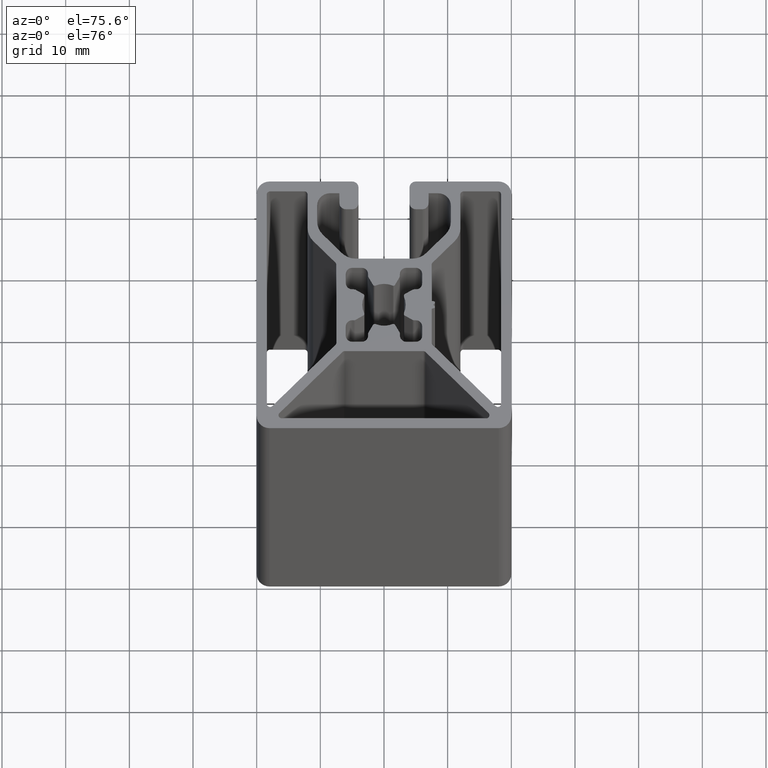
[diagram: clean part render]
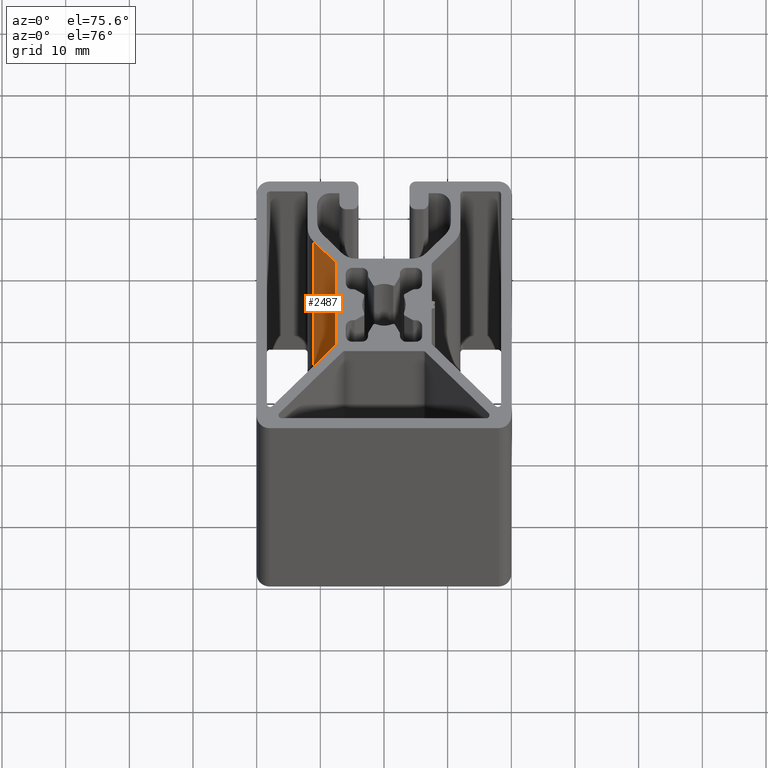
[diagram: same view with one face highlighted and labeled with its STEP entity id]
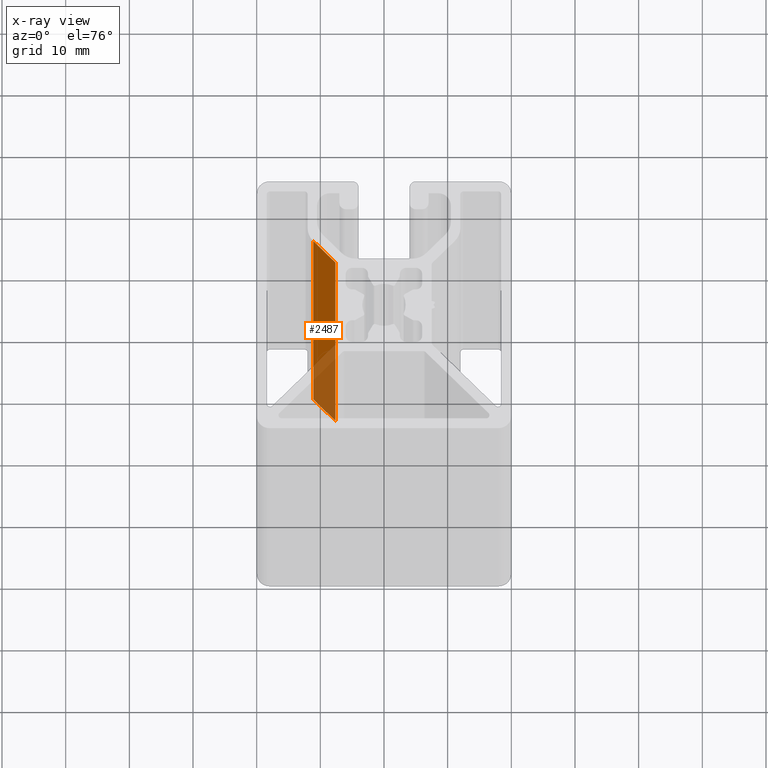
[diagram: x-ray of the same camera — body ghosted, the highlighted face saturated]
A machine part, auxiliary view. The second image highlights one B-rep face of the part: STEP entity #2487.
The next image is the same camera in x-ray: the body ghosted, the highlighted face saturated — about 35% of this face is hidden behind the body in this view.
In plain terms, the highlighted planar face has unit normal (0.7071, 0.7071, 0).
Its self-contained STEP definition (entity closure, byte-faithful):
#223=FACE_OUTER_BOUND('',#354,.T.);
#354=EDGE_LOOP('',(#1654,#1655,#1656,#1657));
#495=LINE('',#3679,#750);
#496=LINE('',#3682,#751);
#497=LINE('',#3684,#752);
#498=LINE('',#3685,#753);
#750=VECTOR('',#2895,100.);
#751=VECTOR('',#2898,4.91421356237309);
#752=VECTOR('',#2899,4.91421356237309);
#753=VECTOR('',#2900,100.);
#1005=VERTEX_POINT('',#3675);
#1006=VERTEX_POINT('',#3677);
#1007=VERTEX_POINT('',#3681);
#1008=VERTEX_POINT('',#3683);
#1265=EDGE_CURVE('',#1006,#1005,#495,.T.);
#1266=EDGE_CURVE('',#1005,#1007,#496,.T.);
#1267=EDGE_CURVE('',#1008,#1006,#497,.T.);
#1268=EDGE_CURVE('',#1008,#1007,#498,.T.);
#1654=ORIENTED_EDGE('',*,*,#1266,.F.);
#1655=ORIENTED_EDGE('',*,*,#1265,.F.);
#1656=ORIENTED_EDGE('',*,*,#1267,.F.);
#1657=ORIENTED_EDGE('',*,*,#1268,.T.);
#2421=PLANE('',#2622);
#2487=ADVANCED_FACE('',(#223),#2421,.F.);
#2622=AXIS2_PLACEMENT_3D('',#3680,#2896,#2897);
#2895=DIRECTION('',(0.,0.,1.));
#2896=DIRECTION('center_axis',(0.707106781186548,0.707106781186547,0.));
#2897=DIRECTION('ref_axis',(0.,0.,-1.));
#2898=DIRECTION('',(0.707106781186547,-0.707106781186548,0.));
#2899=DIRECTION('',(-0.707106781186547,0.707106781186548,0.));
#2900=DIRECTION('',(0.,0.,1.));
#3675=CARTESIAN_POINT('',(-11.1213133435596,10.3435088842544,100.));
#3677=CARTESIAN_POINT('',(-11.1213133435596,10.3435088842544,0.));
#3679=CARTESIAN_POINT('',(-11.1213133435596,10.3435088842544,0.));
#3680=CARTESIAN_POINT('Origin',(-11.1213133435596,10.3435088842544,0.));
#3681=CARTESIAN_POINT('',(-7.64643960940673,6.86863515010148,100.));
#3682=CARTESIAN_POINT('',(-5.75510778660613,4.97730332730089,100.));
#3683=CARTESIAN_POINT('',(-7.64643960940673,6.86863515010148,0.));
#3684=CARTESIAN_POINT('',(-5.75510778660613,4.97730332730089,0.));
#3685=CARTESIAN_POINT('',(-7.64643960940673,6.86863515010148,0.));